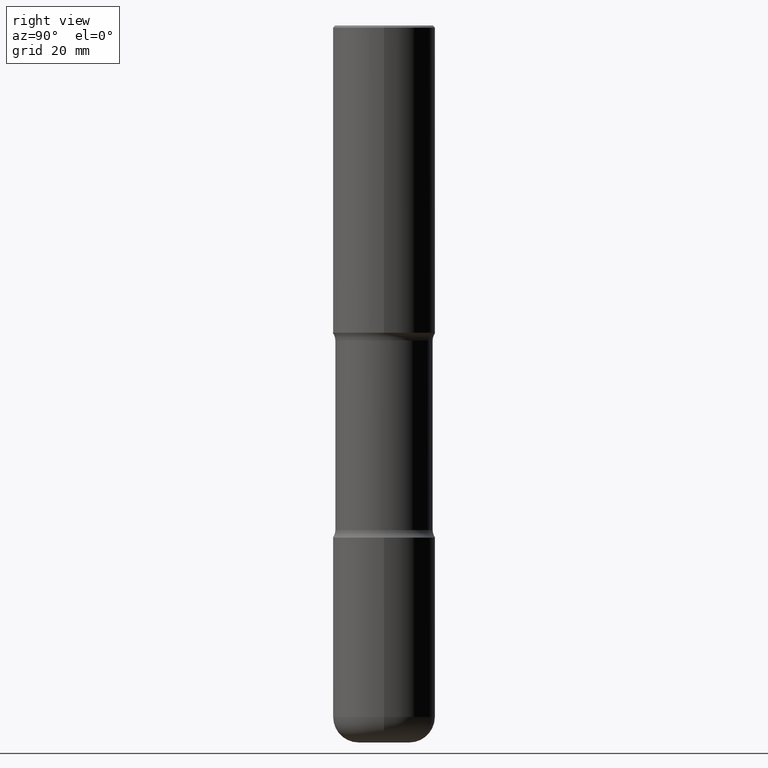
[diagram: clean part render]
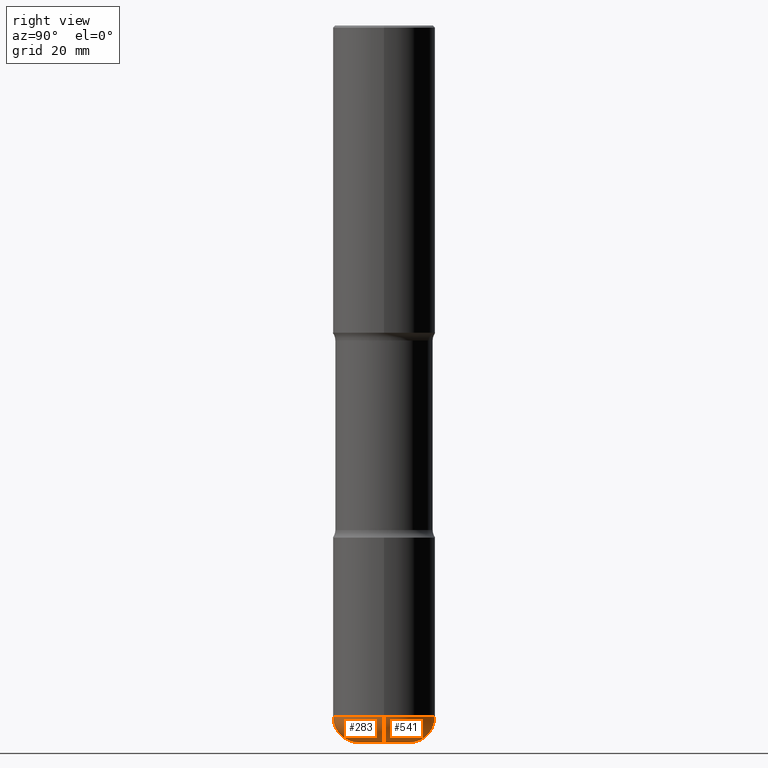
[diagram: same view with one multi-face feature highlighted, each face labeled with its STEP entity id]
A machine part, right view. The highlighted faces form ONE feature: a constant-radius fillet chain: 2 tangent blend faces with common blend radius 6.35 mm. The faces share edges in the B-rep.
Their STEP definitions:
[1] entity #283 (Torus):
#12 = CIRCLE ( 'NONE', #113, 0.2500000000000004996 ) ;
#19 = CARTESIAN_POINT ( 'NONE',  ( 0.2500000000000004996, -2.531323970661280518E-14, -6.750000000000000888 ) ) ;
#23 = DIRECTION ( 'NONE',  ( -2.445468806185136597E-29, 3.491481338843145583E-15, 1.000000000000000000 ) ) ;
#49 = CIRCLE ( 'NONE', #389, 0.2500000000000004996 ) ;
#54 = EDGE_CURVE ( 'NONE', #231, #198, #12, .T. ) ;
#63 = DIRECTION ( 'NONE',  ( 1.000000000000000000, -6.982962677686264344E-15, 0.000000000000000000 ) ) ;
#72 = DIRECTION ( 'NONE',  ( 1.000000000000000000, -6.982962677686265133E-15, 4.883557194083112340E-29 ) ) ;
#73 = CARTESIAN_POINT ( 'NONE',  ( -0.2500000000000004996, -2.133939894544624343E-14, -7.000000000000001776 ) ) ;
#94 = AXIS2_PLACEMENT_3D ( 'NONE', #151, #494, #72 ) ;
#108 = CARTESIAN_POINT ( 'NONE',  ( 0.2500000000000004996, -2.618611004132359483E-14, -7.000000000000001776 ) ) ;
#113 = AXIS2_PLACEMENT_3D ( 'NONE', #440, #264, #155 ) ;
#126 = DIRECTION ( 'NONE',  ( -2.445468806185136597E-29, 3.491481338843145583E-15, 1.000000000000000000 ) ) ;
#151 = CARTESIAN_POINT ( 'NONE',  ( 1.650691444174967427E-28, -2.356749903719123535E-14, -6.750000000000000888 ) ) ;
#154 = CIRCLE ( 'NONE', #498, 0.2500000000000004996 ) ;
#155 = DIRECTION ( 'NONE',  ( -1.000000000000000000, 7.105427357600997126E-15, 0.000000000000000000 ) ) ;
#187 = ORIENTED_EDGE ( 'NONE', *, *, #54, .F. ) ;
#188 = EDGE_LOOP ( 'NONE', ( #187, #195, #199, #273 ) ) ;
#195 = ORIENTED_EDGE ( 'NONE', *, *, #407, .T. ) ;
#196 = EDGE_CURVE ( 'NONE', #198, #277, #501, .T. ) ;
#198 = VERTEX_POINT ( 'NONE', #523 ) ;
#199 = ORIENTED_EDGE ( 'NONE', *, *, #223, .T. ) ;
#223 = EDGE_CURVE ( 'NONE', #234, #277, #49, .T. ) ;
#231 = VERTEX_POINT ( 'NONE', #73 ) ;
#234 = VERTEX_POINT ( 'NONE', #108 ) ;
#264 = DIRECTION ( 'NONE',  ( 7.105427357601001859E-15, 1.000000000000000000, -3.491481338843145583E-15 ) ) ;
#273 = ORIENTED_EDGE ( 'NONE', *, *, #196, .F. ) ;
#277 = VERTEX_POINT ( 'NONE', #356 ) ;
#283 = ADVANCED_FACE ( 'NONE', ( #526 ), #402, .T. ) ;
#299 = DIRECTION ( 'NONE',  ( 1.000000000000000000, -6.982962677686262766E-15, 0.000000000000000000 ) ) ;
#330 = DIRECTION ( 'NONE',  ( 1.000000000000000000, -6.982962677686264344E-15, 0.000000000000000000 ) ) ;
#337 = DIRECTION ( 'NONE',  ( -6.982962677686266711E-15, -1.000000000000000000, 3.491481338843145583E-15 ) ) ;
#356 = CARTESIAN_POINT ( 'NONE',  ( 0.5000000000000007772, -2.705898037603436870E-14, -6.750000000000000888 ) ) ;
#389 = AXIS2_PLACEMENT_3D ( 'NONE', #19, #337, #330 ) ;
#395 = AXIS2_PLACEMENT_3D ( 'NONE', #516, #126, #299 ) ;
#402 = TOROIDAL_SURFACE ( 'NONE', #94, 0.2500000000000004996, 0.2500000000000004996 ) ;
#407 = EDGE_CURVE ( 'NONE', #231, #234, #154, .T. ) ;
#419 = CARTESIAN_POINT ( 'NONE',  ( 1.711828164329595842E-28, -2.444036937190202499E-14, -7.000000000000001776 ) ) ;
#440 = CARTESIAN_POINT ( 'NONE',  ( -0.2500000000000004996, -2.179114219779098172E-14, -6.750000000000000888 ) ) ;
#494 = DIRECTION ( 'NONE',  ( -2.445468806185136597E-29, 3.491481338843145583E-15, 1.000000000000000000 ) ) ;
#498 = AXIS2_PLACEMENT_3D ( 'NONE', #419, #23, #63 ) ;
#501 = CIRCLE ( 'NONE', #395, 0.5000000000000005551 ) ;
#516 = CARTESIAN_POINT ( 'NONE',  ( 1.650691444174967427E-28, -2.356749903719123535E-14, -6.750000000000000888 ) ) ;
#523 = CARTESIAN_POINT ( 'NONE',  ( -0.5000000000000007772, -2.001478535839073126E-14, -6.750000000000000888 ) ) ;
#526 = FACE_OUTER_BOUND ( 'NONE', #188, .T. ) ;
[2] entity #541 (Torus):
#11 = CIRCLE ( 'NONE', #547, 0.2500000000000004996 ) ;
#12 = CIRCLE ( 'NONE', #113, 0.2500000000000004996 ) ;
#17 = EDGE_CURVE ( 'NONE', #234, #231, #11, .T. ) ;
#19 = CARTESIAN_POINT ( 'NONE',  ( 0.2500000000000004996, -2.531323970661280518E-14, -6.750000000000000888 ) ) ;
#32 = ORIENTED_EDGE ( 'NONE', *, *, #548, .F. ) ;
#37 = DIRECTION ( 'NONE',  ( 1.000000000000000000, -6.982962677686262766E-15, 0.000000000000000000 ) ) ;
#40 = DIRECTION ( 'NONE',  ( -2.445468806185136597E-29, 3.491481338843145583E-15, 1.000000000000000000 ) ) ;
#44 = DIRECTION ( 'NONE',  ( -2.445468806185136597E-29, 3.491481338843145583E-15, 1.000000000000000000 ) ) ;
#49 = CIRCLE ( 'NONE', #389, 0.2500000000000004996 ) ;
#54 = EDGE_CURVE ( 'NONE', #231, #198, #12, .T. ) ;
#56 = TOROIDAL_SURFACE ( 'NONE', #376, 0.2500000000000004996, 0.2500000000000004996 ) ;
#73 = CARTESIAN_POINT ( 'NONE',  ( -0.2500000000000004996, -2.133939894544624343E-14, -7.000000000000001776 ) ) ;
#80 = ORIENTED_EDGE ( 'NONE', *, *, #17, .T. ) ;
#84 = CIRCLE ( 'NONE', #367, 0.5000000000000005551 ) ;
#108 = CARTESIAN_POINT ( 'NONE',  ( 0.2500000000000004996, -2.618611004132359483E-14, -7.000000000000001776 ) ) ;
#113 = AXIS2_PLACEMENT_3D ( 'NONE', #440, #264, #155 ) ;
#155 = DIRECTION ( 'NONE',  ( -1.000000000000000000, 7.105427357600997126E-15, 0.000000000000000000 ) ) ;
#198 = VERTEX_POINT ( 'NONE', #523 ) ;
#205 = CARTESIAN_POINT ( 'NONE',  ( 1.650691444174967427E-28, -2.356749903719123535E-14, -6.750000000000000888 ) ) ;
#223 = EDGE_CURVE ( 'NONE', #234, #277, #49, .T. ) ;
#230 = EDGE_LOOP ( 'NONE', ( #80, #363, #32, #341 ) ) ;
#231 = VERTEX_POINT ( 'NONE', #73 ) ;
#234 = VERTEX_POINT ( 'NONE', #108 ) ;
#253 = CARTESIAN_POINT ( 'NONE',  ( 1.650691444174967427E-28, -2.356749903719123535E-14, -6.750000000000000888 ) ) ;
#256 = FACE_OUTER_BOUND ( 'NONE', #230, .T. ) ;
#264 = DIRECTION ( 'NONE',  ( 7.105427357601001859E-15, 1.000000000000000000, -3.491481338843145583E-15 ) ) ;
#277 = VERTEX_POINT ( 'NONE', #356 ) ;
#281 = DIRECTION ( 'NONE',  ( -2.445468806185136597E-29, 3.491481338843145583E-15, 1.000000000000000000 ) ) ;
#326 = DIRECTION ( 'NONE',  ( 1.000000000000000000, -6.982962677686264344E-15, 0.000000000000000000 ) ) ;
#330 = DIRECTION ( 'NONE',  ( 1.000000000000000000, -6.982962677686264344E-15, 0.000000000000000000 ) ) ;
#337 = DIRECTION ( 'NONE',  ( -6.982962677686266711E-15, -1.000000000000000000, 3.491481338843145583E-15 ) ) ;
#341 = ORIENTED_EDGE ( 'NONE', *, *, #223, .F. ) ;
#356 = CARTESIAN_POINT ( 'NONE',  ( 0.5000000000000007772, -2.705898037603436870E-14, -6.750000000000000888 ) ) ;
#363 = ORIENTED_EDGE ( 'NONE', *, *, #54, .T. ) ;
#367 = AXIS2_PLACEMENT_3D ( 'NONE', #253, #40, #37 ) ;
#376 = AXIS2_PLACEMENT_3D ( 'NONE', #205, #44, #383 ) ;
#383 = DIRECTION ( 'NONE',  ( 1.000000000000000000, -6.982962677686265133E-15, 4.883557194083112340E-29 ) ) ;
#389 = AXIS2_PLACEMENT_3D ( 'NONE', #19, #337, #330 ) ;
#440 = CARTESIAN_POINT ( 'NONE',  ( -0.2500000000000004996, -2.179114219779098172E-14, -6.750000000000000888 ) ) ;
#507 = CARTESIAN_POINT ( 'NONE',  ( 1.711828164329595842E-28, -2.444036937190202499E-14, -7.000000000000001776 ) ) ;
#523 = CARTESIAN_POINT ( 'NONE',  ( -0.5000000000000007772, -2.001478535839073126E-14, -6.750000000000000888 ) ) ;
#541 = ADVANCED_FACE ( 'NONE', ( #256 ), #56, .T. ) ;
#547 = AXIS2_PLACEMENT_3D ( 'NONE', #507, #281, #326 ) ;
#548 = EDGE_CURVE ( 'NONE', #277, #198, #84, .T. ) ;